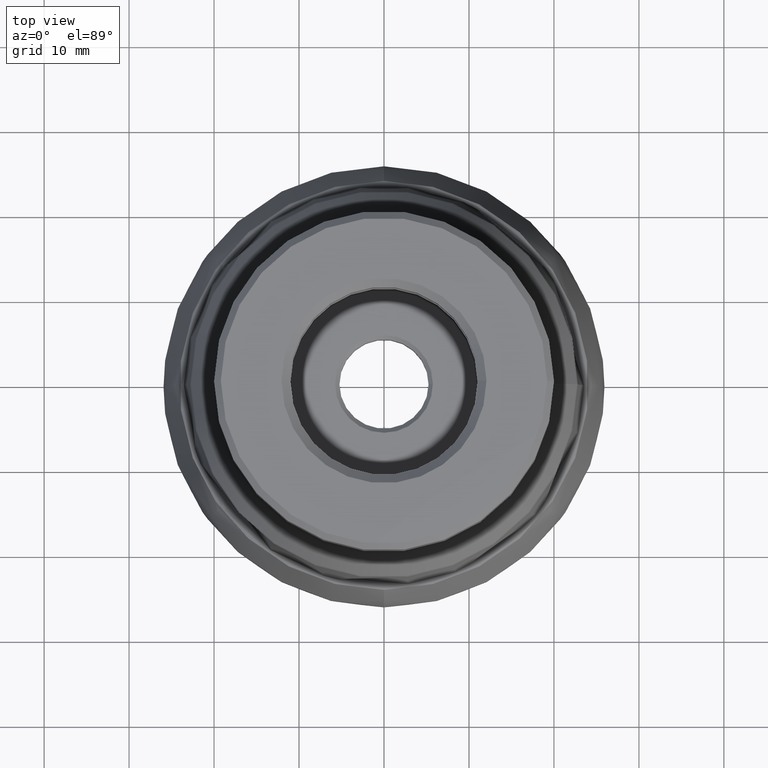
[diagram: clean part render]
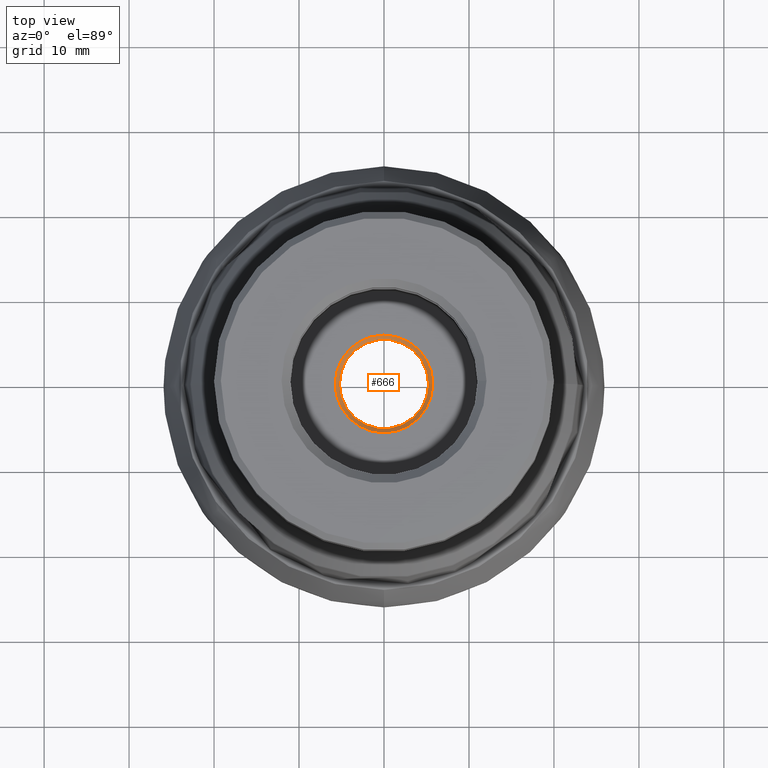
[diagram: same view with one face highlighted and labeled with its STEP entity id]
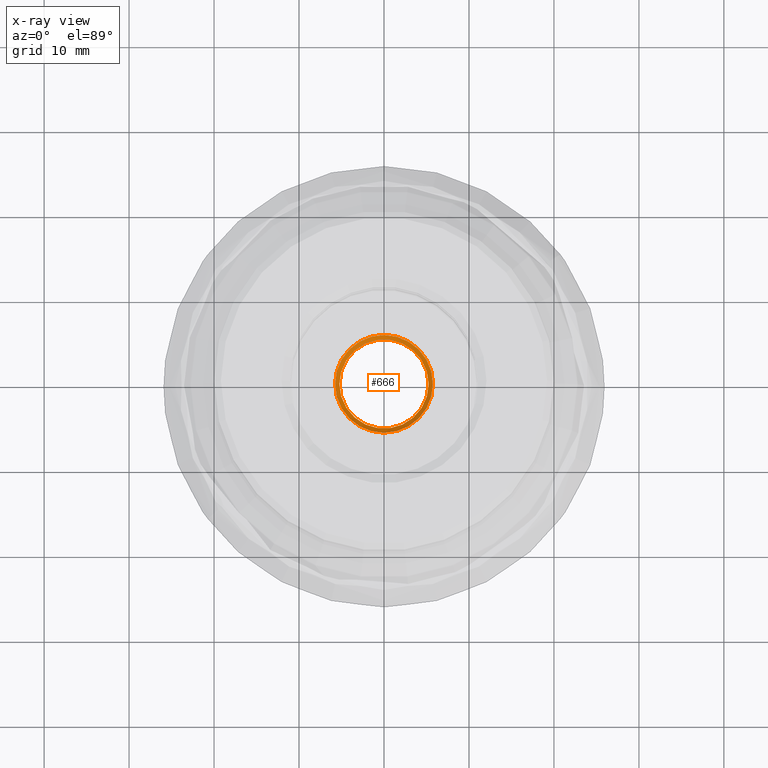
[diagram: x-ray of the same camera — body ghosted, the highlighted face saturated]
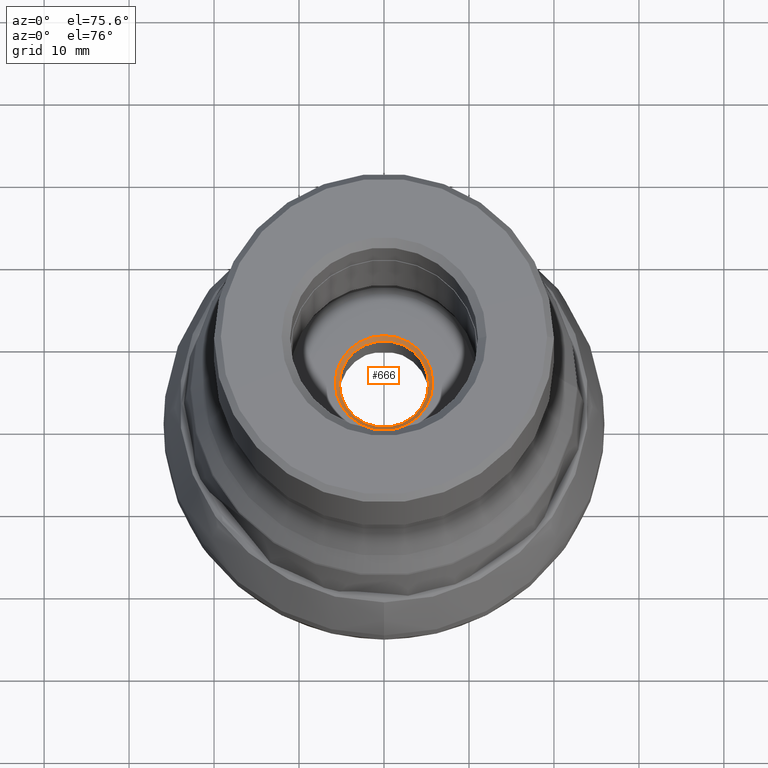
[diagram: same view with one face highlighted and labeled with its STEP entity id]
A machine part, top view. The second image highlights one B-rep face of the part: STEP entity #666.
The next image is the same camera in x-ray: the body ghosted, the highlighted face saturated — about 0% of this face is hidden behind the body in this view.
A second angle (auxiliary view) of the same face is appended — the face is thin or edge-on in the first view.
In plain terms, the highlighted conical surface has half-angle 45 deg.
Its self-contained STEP definition (entity closure, byte-faithful):
#184 = CARTESIAN_POINT ( 'NONE',  ( 5.250000000034766000, 0.0000000000000000000, -22.50000000000811400 ) ) ;
#572 = CONICAL_SURFACE ( 'NONE', #2779, 5.250000000034766000, 0.7853981633958957400 ) ;
#612 = ORIENTED_EDGE ( 'NONE', *, *, #2888, .F. ) ;
#666 = ADVANCED_FACE ( 'NONE', ( #2267, #2189 ), #572, .F. ) ;
#694 = DIRECTION ( 'NONE',  ( -0.0000000000000000000, -0.0000000000000000000, 1.000000000000000000 ) ) ;
#696 = ORIENTED_EDGE ( 'NONE', *, *, #745, .T. ) ;
#745 = EDGE_CURVE ( 'NONE', #839, #839, #2022, .T. ) ;
#819 = DIRECTION ( 'NONE',  ( 0.0000000000000000000, 0.0000000000000000000, -1.000000000000000000 ) ) ;
#839 = VERTEX_POINT ( 'NONE', #184 ) ;
#865 = CARTESIAN_POINT ( 'NONE',  ( 5.750000000033987000, 0.0000000000000000000, -23.00000000000888900 ) ) ;
#931 = DIRECTION ( 'NONE',  ( 1.000000000000000000, 0.0000000000000000000, 0.0000000000000000000 ) ) ;
#939 = DIRECTION ( 'NONE',  ( 1.000000000000000000, 0.0000000000000000000, 0.0000000000000000000 ) ) ;
#1060 = EDGE_LOOP ( 'NONE', ( #696 ) ) ;
#1113 = EDGE_LOOP ( 'NONE', ( #612 ) ) ;
#1162 = DIRECTION ( 'NONE',  ( -0.0000000000000000000, -0.0000000000000000000, 1.000000000000000000 ) ) ;
#1463 = AXIS2_PLACEMENT_3D ( 'NONE', #2506, #1162, #939 ) ;
#1539 = CARTESIAN_POINT ( 'NONE',  ( 0.0000000000000000000, 0.0000000000000000000, -23.00000000000888900 ) ) ;
#2022 = CIRCLE ( 'NONE', #1463, 5.250000000034766000 ) ;
#2189 = FACE_BOUND ( 'NONE', #1060, .T. ) ;
#2258 = AXIS2_PLACEMENT_3D ( 'NONE', #1539, #694, #931 ) ;
#2267 = FACE_OUTER_BOUND ( 'NONE', #1113, .T. ) ;
#2467 = DIRECTION ( 'NONE',  ( -1.000000000000000000, 0.0000000000000000000, 0.0000000000000000000 ) ) ;
#2506 = CARTESIAN_POINT ( 'NONE',  ( 0.0000000000000000000, 0.0000000000000000000, -22.50000000000811400 ) ) ;
#2536 = CARTESIAN_POINT ( 'NONE',  ( 0.0000000000000000000, 0.0000000000000000000, -22.50000000000811400 ) ) ;
#2743 = CIRCLE ( 'NONE', #2258, 5.750000000033987000 ) ;
#2779 = AXIS2_PLACEMENT_3D ( 'NONE', #2536, #819, #2467 ) ;
#2857 = VERTEX_POINT ( 'NONE', #865 ) ;
#2888 = EDGE_CURVE ( 'NONE', #2857, #2857, #2743, .T. ) ;